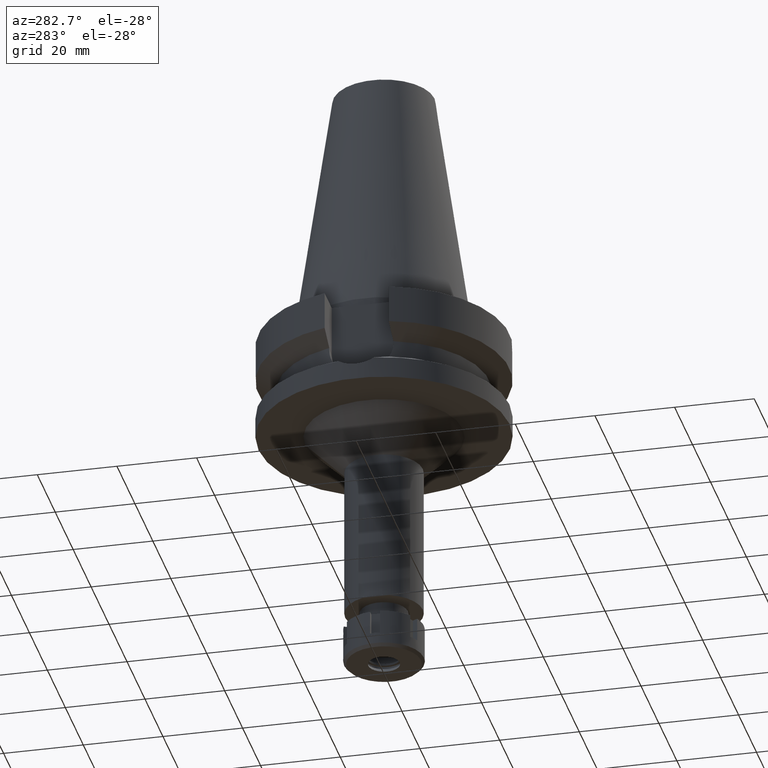
[diagram: clean part render]
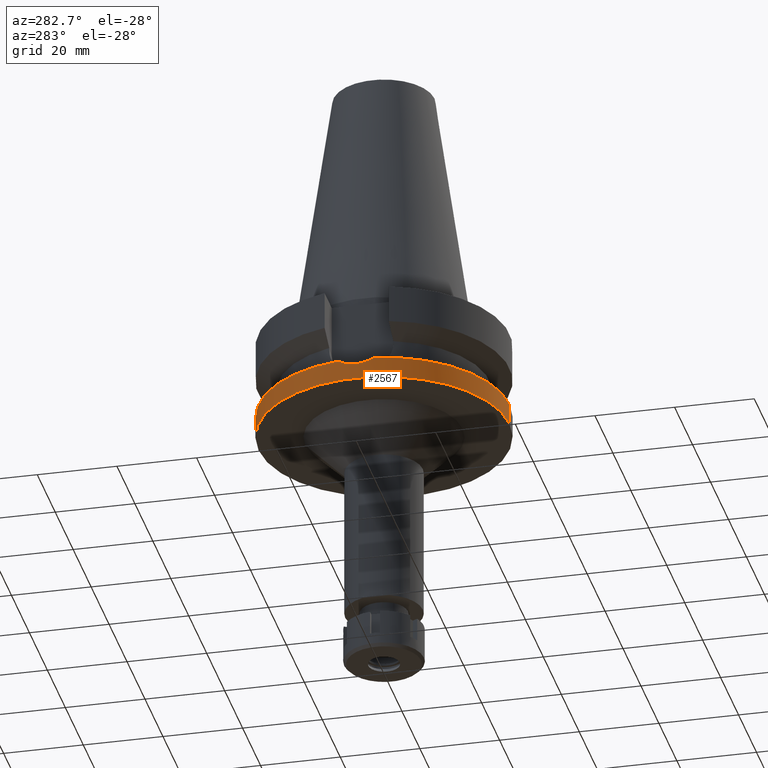
[diagram: same view with one face highlighted and labeled with its STEP entity id]
A machine part, auxiliary view. The second image highlights one B-rep face of the part: STEP entity #2567.
In plain terms, the highlighted cylindrical surface (partial cylindrical patch) has radius 31.5 mm, axis along (0, 0, -1).
Its self-contained STEP definition (entity closure, byte-faithful):
#71 = ORIENTED_EDGE ( 'NONE', *, *, #2388, .T. ) ;
#166 = CARTESIAN_POINT ( 'NONE',  ( 0.0000000000000000000, 0.0000000000000000000, -21.63449434733000132 ) ) ;
#200 = CARTESIAN_POINT ( 'NONE',  ( -31.41196838671982761, 2.353633167399140191, -22.64828270924342135 ) ) ;
#204 = DIRECTION ( 'NONE',  ( 0.0000000000000000000, 0.0000000000000000000, 1.000000000000000000 ) ) ;
#214 = CARTESIAN_POINT ( 'NONE',  ( -31.43643257257468093, -2.003966855041720230, -22.74771882455625516 ) ) ;
#306 = VERTEX_POINT ( 'NONE', #3228 ) ;
#371 = B_SPLINE_CURVE_WITH_KNOTS ( 'NONE', 3,
 ( #764, #2160, #2693, #440, #2715, #1620, #2747, #461, #3512, #742, #200, #2142, #3314, #1878, #2419, #3563, #1547, #1898, #214, #3025, #1338, #2969, #966, #2103, #2987, #1563 ),
 .UNSPECIFIED., .F., .F.,
 ( 4, 2, 2, 1, 1, 2, 2, 2, 2, 2, 1, 1, 2, 2, 4 ),
 ( 0.0000000000000000000, 0.1250000000000000555, 0.1875000000000003608, 0.2187500000000005829, 0.2343750000000006661, 0.2421875000000006939, 0.2500000000000007216, 0.4999999999999980016, 0.6249999999999966693, 0.6874999999999961142, 0.7187499999999957812, 0.7343749999999956701, 0.7421874999999955591, 0.7499999999999954481, 1.000000000000000000 ),
 .UNSPECIFIED. ) ;
#440 = CARTESIAN_POINT ( 'NONE',  ( -31.33704727451088701, 3.201741485572032975, -22.33858232039710146 ) ) ;
#443 = CARTESIAN_POINT ( 'NONE',  ( 0.0000000000000000000, 31.50000000000000000, -21.63449434733000132 ) ) ;
#461 = CARTESIAN_POINT ( 'NONE',  ( -31.40238352135567368, 2.478482150255520988, -22.60918600287887870 ) ) ;
#629 = DIRECTION ( 'NONE',  ( 0.0000000000000000000, 0.0000000000000000000, -1.000000000000000000 ) ) ;
#684 = CARTESIAN_POINT ( 'NONE',  ( -31.17899877608999759, 4.485536235554000051, -21.63449434733000132 ) ) ;
#726 = VERTEX_POINT ( 'NONE', #2112 ) ;
#742 = CARTESIAN_POINT ( 'NONE',  ( -31.41056491124585293, 2.372237050524538926, -22.64256036890107993 ) ) ;
#747 = DIRECTION ( 'NONE',  ( 0.0000000000000000000, 1.000000000000000000, 0.0000000000000000000 ) ) ;
#764 = CARTESIAN_POINT ( 'NONE',  ( -31.17899877608999759, 4.485536235554000051, -21.63449434733000132 ) ) ;
#799 = ORIENTED_EDGE ( 'NONE', *, *, #2452, .T. ) ;
#966 = CARTESIAN_POINT ( 'NONE',  ( -31.41425586186309715, -2.322858716165696613, -22.65761362937588785 ) ) ;
#1007 = CARTESIAN_POINT ( 'NONE',  ( -31.17899877608999759, -4.485536235554000051, -21.63449434733000132 ) ) ;
#1096 = DIRECTION ( 'NONE',  ( 0.0000000000000000000, -1.000000000000000000, 0.0000000000000000000 ) ) ;
#1176 = EDGE_LOOP ( 'NONE', ( #2039, #799, #71, #1882, #1899, #1736 ) ) ;
#1291 = CIRCLE ( 'NONE', #1770, 31.50000000000000000 ) ;
#1338 = CARTESIAN_POINT ( 'NONE',  ( -31.41974700004597665, -2.247358039327526313, -22.67997564925554244 ) ) ;
#1431 = DIRECTION ( 'NONE',  ( 0.0000000000000000000, 0.0000000000000000000, -1.000000000000000000 ) ) ;
#1547 = CARTESIAN_POINT ( 'NONE',  ( -31.46161069947297406, -1.564500927471072611, -22.84904545394530473 ) ) ;
#1563 = CARTESIAN_POINT ( 'NONE',  ( -31.17899877608999759, -4.485536235554000051, -21.63449434733000132 ) ) ;
#1591 = CARTESIAN_POINT ( 'NONE',  ( 0.0000000000000000000, 31.50000000000000000, -21.63449434733000132 ) ) ;
#1620 = CARTESIAN_POINT ( 'NONE',  ( -31.37890571234700587, 2.759253316053588811, -22.51292583804538339 ) ) ;
#1662 = CARTESIAN_POINT ( 'NONE',  ( 0.0000000000000000000, 2.117659245085999800E-14, 72.92000000000000171 ) ) ;
#1676 = VERTEX_POINT ( 'NONE', #3169 ) ;
#1687 = EDGE_CURVE ( 'NONE', #3316, #2363, #2815, .T. ) ;
#1736 = ORIENTED_EDGE ( 'NONE', *, *, #2778, .F. ) ;
#1759 = VECTOR ( 'NONE', #2751, 1000.000000000000000 ) ;
#1763 = CARTESIAN_POINT ( 'NONE',  ( 0.0000000000000000000, 0.0000000000000000000, -21.63449434733000132 ) ) ;
#1770 = AXIS2_PLACEMENT_3D ( 'NONE', #166, #2657, #1842 ) ;
#1842 = DIRECTION ( 'NONE',  ( 0.0000000000000000000, -1.000000000000000000, 0.0000000000000000000 ) ) ;
#1878 = CARTESIAN_POINT ( 'NONE',  ( -31.49987638199703355, -0.3937373737425396425, -22.99951167286949882 ) ) ;
#1882 = ORIENTED_EDGE ( 'NONE', *, *, #3502, .F. ) ;
#1898 = CARTESIAN_POINT ( 'NONE',  ( -31.44527646887209471, -1.857544946900752336, -22.78339309170242899 ) ) ;
#1899 = ORIENTED_EDGE ( 'NONE', *, *, #3611, .T. ) ;
#2039 = ORIENTED_EDGE ( 'NONE', *, *, #1687, .T. ) ;
#2048 = AXIS2_PLACEMENT_3D ( 'NONE', #3553, #204, #747 ) ;
#2103 = CARTESIAN_POINT ( 'NONE',  ( -31.36260275698547062, -3.014870738529931149, -22.44700345725764024 ) ) ;
#2112 = CARTESIAN_POINT ( 'NONE',  ( 0.0000000000000000000, 31.50000000000000000, -27.00000000000000000 ) ) ;
#2142 = CARTESIAN_POINT ( 'NONE',  ( -31.47150128874051589, 1.550917995534081051, -22.89093254494732577 ) ) ;
#2160 = CARTESIAN_POINT ( 'NONE',  ( -31.23220374065949301, 4.115708095071471284, -21.88266233714172415 ) ) ;
#2276 = CYLINDRICAL_SURFACE ( 'NONE', #3187, 31.50000000000000000 ) ;
#2363 = VERTEX_POINT ( 'NONE', #1591 ) ;
#2388 = EDGE_CURVE ( 'NONE', #726, #306, #3068, .T. ) ;
#2419 = CARTESIAN_POINT ( 'NONE',  ( -31.49253540246490246, -0.7829780335718081741, -22.97155374604001210 ) ) ;
#2442 = LINE ( 'NONE', #443, #1759 ) ;
#2452 = EDGE_CURVE ( 'NONE', #2363, #726, #2442, .T. ) ;
#2567 = ADVANCED_FACE ( 'NONE', ( #2848 ), #2276, .T. ) ;
#2607 = DIRECTION ( 'NONE',  ( -0.9898094849552905306, 0.1423979757318985240, 0.0000000000000000000 ) ) ;
#2639 = AXIS2_PLACEMENT_3D ( 'NONE', #1763, #629, #2607 ) ;
#2657 = DIRECTION ( 'NONE',  ( 0.0000000000000000000, 0.0000000000000000000, -1.000000000000000000 ) ) ;
#2693 = CARTESIAN_POINT ( 'NONE',  ( -31.27836648583588897, 3.744813399159652167, -22.08709055486511019 ) ) ;
#2715 = CARTESIAN_POINT ( 'NONE',  ( -31.35484698255429237, 3.022878705303804203, -22.41324384625942656 ) ) ;
#2747 = CARTESIAN_POINT ( 'NONE',  ( -31.39027486917520804, 2.628603510741960747, -22.55969012852283839 ) ) ;
#2751 = DIRECTION ( 'NONE',  ( 0.0000000000000000000, 1.099151708819000049E-13, -1.000000000000000000 ) ) ;
#2778 = EDGE_CURVE ( 'NONE', #3316, #2867, #371, .T. ) ;
#2815 = CIRCLE ( 'NONE', #2639, 31.50000000000001421 ) ;
#2848 = FACE_OUTER_BOUND ( 'NONE', #1176, .T. ) ;
#2867 = VERTEX_POINT ( 'NONE', #1007 ) ;
#2969 = CARTESIAN_POINT ( 'NONE',  ( -31.41623505044934106, -2.295962347427818351, -22.66567875136124499 ) ) ;
#2987 = CARTESIAN_POINT ( 'NONE',  ( -31.28470547692855419, -3.750768100158396123, -22.12755020538252282 ) ) ;
#3025 = CARTESIAN_POINT ( 'NONE',  ( -31.42493032681630538, -2.174413258177177788, -22.70105836180215064 ) ) ;
#3068 = CIRCLE ( 'NONE', #2048, 31.50000000000000000 ) ;
#3159 = DIRECTION ( 'NONE',  ( 0.0000000000000000000, -1.105773104655000034E-13, -1.000000000000000000 ) ) ;
#3169 = CARTESIAN_POINT ( 'NONE',  ( 0.0000000000000000000, -31.50000000000000000, -21.63449434733000132 ) ) ;
#3187 = AXIS2_PLACEMENT_3D ( 'NONE', #1662, #1431, #1096 ) ;
#3228 = CARTESIAN_POINT ( 'NONE',  ( 0.0000000000000000000, -31.50000000000000000, -27.00000000000000000 ) ) ;
#3314 = CARTESIAN_POINT ( 'NONE',  ( -31.50024232868987184, 0.7571333964171345077, -23.00095759426207565 ) ) ;
#3316 = VERTEX_POINT ( 'NONE', #684 ) ;
#3435 = LINE ( 'NONE', #3453, #3479 ) ;
#3453 = CARTESIAN_POINT ( 'NONE',  ( 0.0000000000000000000, -31.50000000000000000, -21.63449434733000132 ) ) ;
#3479 = VECTOR ( 'NONE', #3159, 1000.000000000000000 ) ;
#3502 = EDGE_CURVE ( 'NONE', #1676, #306, #3435, .T. ) ;
#3512 = CARTESIAN_POINT ( 'NONE',  ( -31.40732536569318256, 2.414664100621000564, -22.62934834046749444 ) ) ;
#3553 = CARTESIAN_POINT ( 'NONE',  ( 0.0000000000000000000, 2.117659245085999800E-14, -27.00000000000000000 ) ) ;
#3563 = CARTESIAN_POINT ( 'NONE',  ( -31.47069543721492479, -1.368873748142594104, -22.88521609265066559 ) ) ;
#3611 = EDGE_CURVE ( 'NONE', #1676, #2867, #1291, .T. ) ;